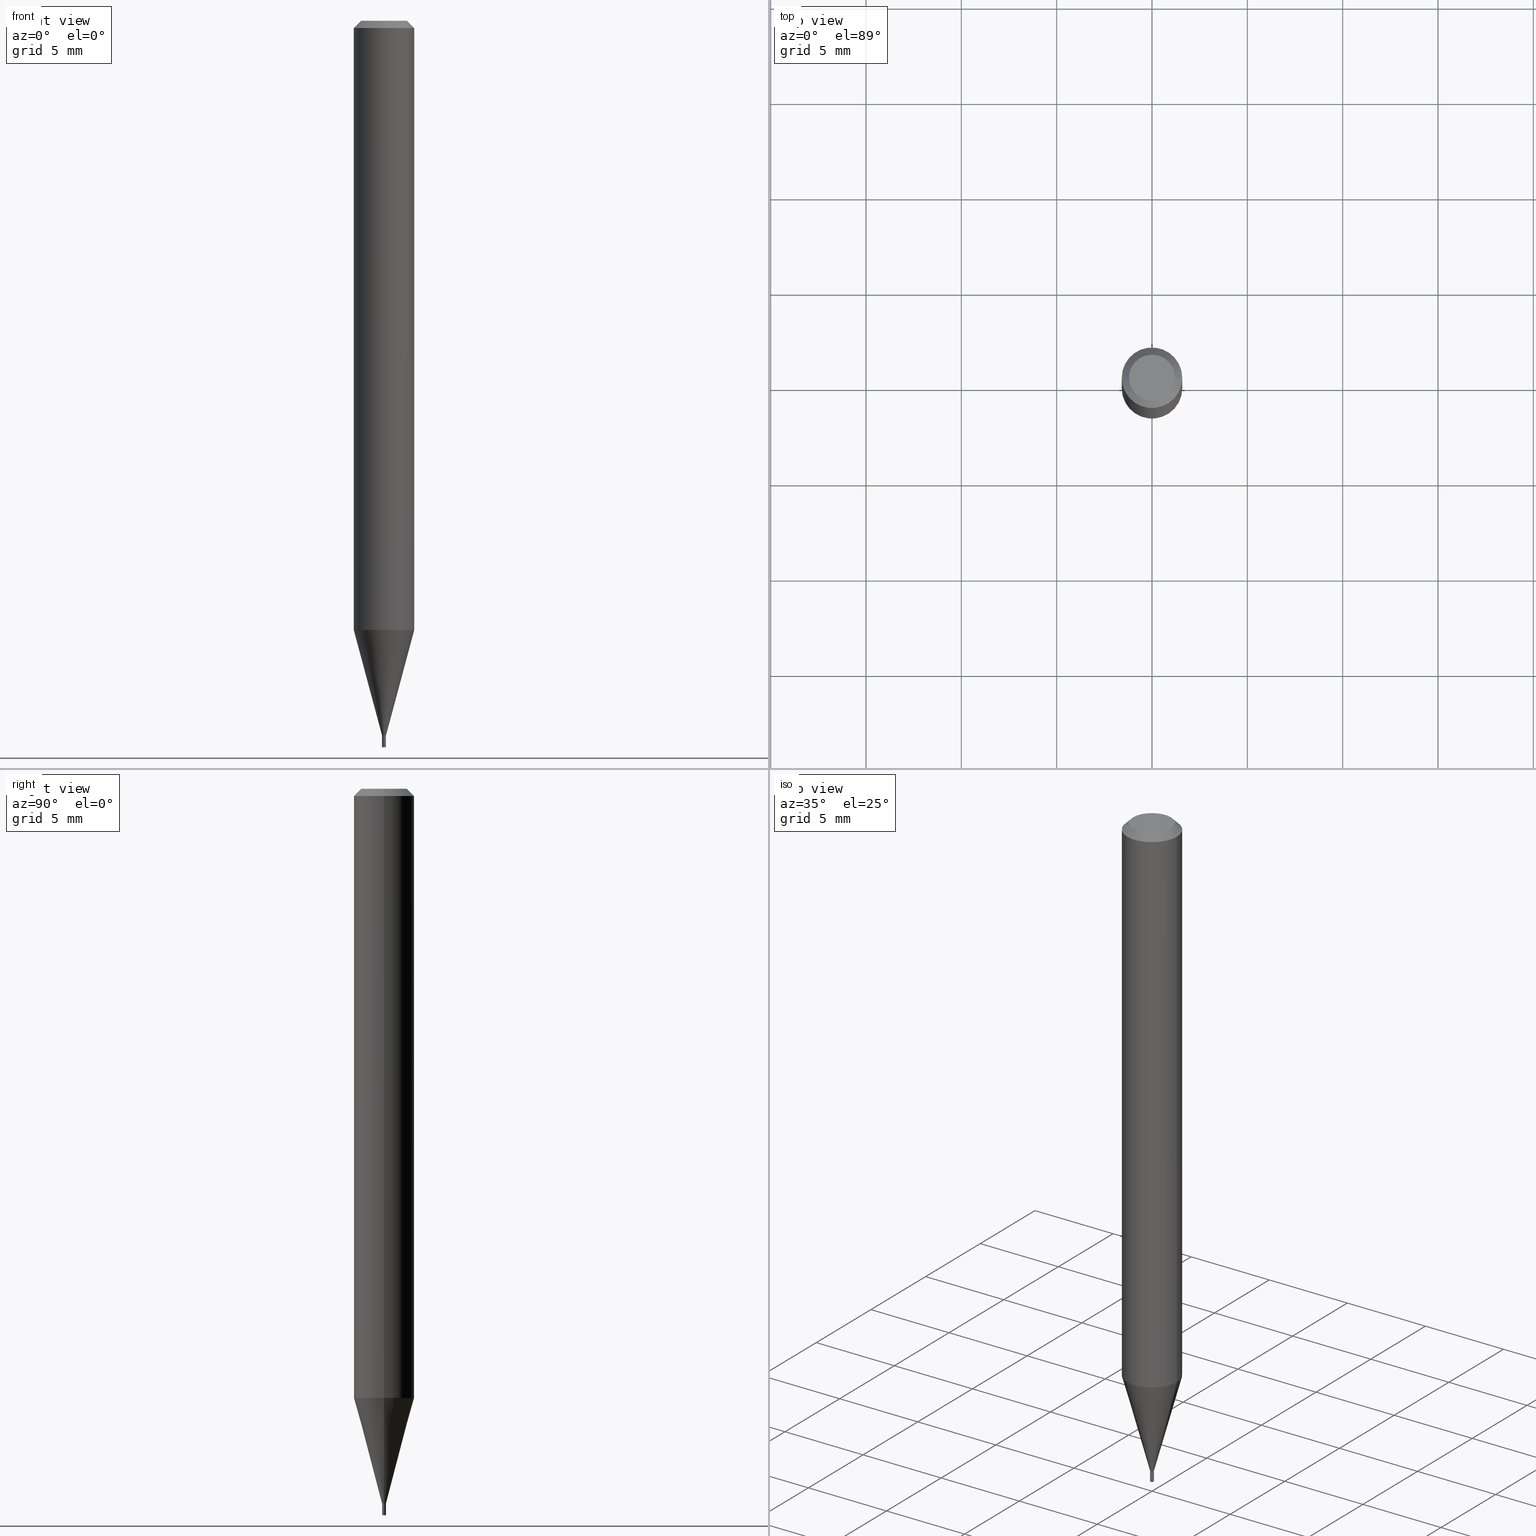
[diagram: canonical four-view strip — front | top / right | iso, engineering-drawing reading convention]
A machine part, canonical four-view strip (front | top / right | iso — engineering-drawing reading convention). The complete STEP part file that produces these views, byte-faithful:
ISO-10303-21;
HEADER;
FILE_DESCRIPTION (( 'STEP AP203' ),
    '1' );
FILE_NAME ('04114.STEP',
    '2024-03-14T17:01:27',
    ( '' ),
    ( '' ),
    'SwSTEP 2.0',
    'SolidWorks 2023',
    '' );
FILE_SCHEMA (( 'CONFIG_CONTROL_DESIGN' ));
ENDSEC;

DATA;
#1 = CARTESIAN_POINT ( 'NONE',  ( 3.609511957929261074E-29, -5.153426456132482850E-15, -1.475999999999999757 ) ) ;
#2 = VERTEX_POINT ( 'NONE', #280 ) ;
#3 = DIRECTION ( 'NONE',  ( 1.000000000000000000, -6.982962677686266711E-15, 4.876176775795935793E-29 ) ) ;
#4 = UNCERTAINTY_MEASURE_WITH_UNIT (LENGTH_MEASURE( 1.000000000000000082E-05 ), #153, 'distance_accuracy_value', 'NONE');
#5 = ORIENTED_EDGE ( 'NONE', *, *, #69, .T. ) ;
#6 = DIRECTION ( 'NONE',  ( 1.000000000000000000, -6.982962677686265922E-15, 4.876176775795935793E-29 ) ) ;
#7 = CIRCLE ( 'NONE', #248, 0.003999999999999650536 ) ;
#8 = DIRECTION ( 'NONE',  ( 1.000000000000000000, -6.982962677686266711E-15, 4.876176775795935793E-29 ) ) ;
#9 = DIRECTION ( 'NONE',  ( -2.445468806185136597E-29, 3.491481338843145583E-15, 1.000000000000000000 ) ) ;
#10 = CARTESIAN_POINT ( 'NONE',  ( 3.609511957929261635E-29, -5.153426456132482850E-15, -1.475999999999999979 ) ) ;
#11 = ADVANCED_FACE ( 'NONE', ( #114 ), #427, .F. ) ;
#12 = APPROVAL_DATE_TIME ( #58, #57 ) ;
#13 =( GEOMETRIC_REPRESENTATION_CONTEXT ( 3 ) GLOBAL_UNCERTAINTY_ASSIGNED_CONTEXT ( ( #4 ) ) GLOBAL_UNIT_ASSIGNED_CONTEXT ( ( #153, #15, #118 ) ) REPRESENTATION_CONTEXT ( 'NONE', 'WORKASPACE' ) );
#14 = CARTESIAN_POINT ( 'NONE',  ( 0.003999999999999650536, -5.179612566173804615E-15, -1.475500000000000256 ) ) ;
#15 =( NAMED_UNIT ( * ) PLANE_ANGLE_UNIT ( ) SI_UNIT ( $, .RADIAN. ) );
#16 = CARTESIAN_POINT ( 'NONE',  ( -0.003999999999999649669, 2.842170943040151818E-17, -1.967574036101790018E-31 ) ) ;
#17 = DIRECTION ( 'NONE',  ( 1.000000000000000000, 0.000000000000000000, 0.000000000000000000 ) ) ;
#18 = MANIFOLD_SOLID_BREP ( 'Body-Move/Copy2[2]', #444 ) ;
#19 = CARTESIAN_POINT ( 'NONE',  ( 0.000000000000000000, 0.000000000000000000, 0.000000000000000000 ) ) ;
#20 = VECTOR ( 'NONE', #394, 39.37007874015748143 ) ;
#21 = VECTOR ( 'NONE', #464, 39.37007874015748854 ) ;
#22 = EDGE_CURVE ( 'NONE', #26, #458, #452, .T. ) ;
#23 = EDGE_CURVE ( 'NONE', #251, #158, #70, .T. ) ;
#24 = SHAPE_DEFINITION_REPRESENTATION ( #329, #183 ) ;
#25 = APPROVAL_PERSON_ORGANIZATION ( #371, #65, #28 ) ;
#26 = VERTEX_POINT ( 'NONE', #209 ) ;
#27 = DIRECTION ( 'NONE',  ( 1.000000000000000000, -6.982962677686217801E-15, 0.000000000000000000 ) ) ;
#28 = APPROVAL_ROLE ( '' ) ;
#29 = ORIENTED_EDGE ( 'NONE', *, *, #218, .F. ) ;
#30 = PERSON_AND_ORGANIZATION_ROLE ( 'classification_officer' ) ;
#31 = DIRECTION ( 'NONE',  ( -2.445468806185136597E-29, 3.491481338843145583E-15, 1.000000000000000000 ) ) ;
#32 = CARTESIAN_POINT ( 'NONE',  ( 0.06250000000000000000, -4.811533449433679005E-16, -0.01499999999999999944 ) ) ;
#33 = DIRECTION ( 'NONE',  ( -2.445468806185136597E-29, 3.491481338843145583E-15, 1.000000000000000000 ) ) ;
#34 = SECURITY_CLASSIFICATION_LEVEL ( 'unclassified' ) ;
#35 = AXIS2_PLACEMENT_3D ( 'NONE', #385, #243, #257 ) ;
#36 = CARTESIAN_POINT ( 'NONE',  ( 0.003999999999999648802, -5.181358306843225329E-15, -1.475999999999999979 ) ) ;
#37 = AXIS2_PLACEMENT_3D ( 'NONE', #253, #391, #436 ) ;
#38 = DIRECTION ( 'NONE',  ( 1.000000000000000000, -6.982962677686267499E-15, 5.108144071313017768E-29 ) ) ;
#39 = DIRECTION ( 'NONE',  ( -1.000000000000000000, 6.982962677686266711E-15, 0.000000000000000000 ) ) ;
#40 = ORIENTED_EDGE ( 'NONE', *, *, #265, .F. ) ;
#41 = CARTESIAN_POINT ( 'NONE',  ( 0.003999999999999648802, -5.181358306843225329E-15, -1.475999999999999979 ) ) ;
#42 = ADVANCED_FACE ( 'NONE', ( #135 ), #357, .F. ) ;
#43 = DIRECTION ( 'NONE',  ( -2.445468806185136597E-29, 3.491481338843145583E-15, 1.000000000000000000 ) ) ;
#44 = DIRECTION ( 'NONE',  ( -2.445468806185136597E-29, 3.491481338843145583E-15, 1.000000000000000000 ) ) ;
#45 = APPROVAL ( #89, 'UNSPECIFIED' ) ;
#46 = CARTESIAN_POINT ( 'NONE',  ( 0.003500000000000000507, -5.177866825504383900E-15, -1.475999999999999757 ) ) ;
#47 = CARTESIAN_POINT ( 'NONE',  ( 2.793185071078116438E-17, 0.003999999999994847087, -1.475999999999999979 ) ) ;
#48 = DIRECTION ( 'NONE',  ( -2.445468806185136877E-29, 3.491481338843145188E-15, 1.000000000000000000 ) ) ;
#49 = CIRCLE ( 'NONE', #117, 0.004000000000000000083 ) ;
#50 = DIRECTION ( 'NONE',  ( 1.000000000000000000, -6.982962677686266711E-15, 4.876176775795935793E-29 ) ) ;
#51 = EDGE_CURVE ( 'NONE', #208, #78, #429, .T. ) ;
#52 = PERSON_AND_ORGANIZATION ( #416, #53 ) ;
#53 = ORGANIZATION ( 'UNSPECIFIED', 'UNSPECIFIED', '' ) ;
#54 = ORIENTED_EDGE ( 'NONE', *, *, #448, .F. ) ;
#55 = CIRCLE ( 'NONE', #419, 0.003999999999999650536 ) ;
#56 = EDGE_CURVE ( 'NONE', #208, #2, #68, .T. ) ;
#57 = APPROVAL ( #407, 'UNSPECIFIED' ) ;
#58 = DATE_AND_TIME ( #217, #107 ) ;
#59 = PERSON_AND_ORGANIZATION ( #416, #53 ) ;
#60 = CONICAL_SURFACE ( 'NONE', #121, 0.003999999999999648802, 0.2617993877991504625 ) ;
#61 = AXIS2_PLACEMENT_3D ( 'NONE', #308, #129, #424 ) ;
#62 = ORIENTED_EDGE ( 'NONE', *, *, #433, .T. ) ;
#63 = CARTESIAN_POINT ( 'NONE',  ( -0.004000000000000000083, 2.842170943040400803E-17, -1.967574036101962334E-31 ) ) ;
#64 = ORIENTED_EDGE ( 'NONE', *, *, #367, .T. ) ;
#65 = APPROVAL ( #342, 'UNSPECIFIED' ) ;
#66 = CYLINDRICAL_SURFACE ( 'NONE', #187, 0.003999999999999649669 ) ;
#67 = ORIENTED_EDGE ( 'NONE', *, *, #265, .T. ) ;
#68 = LINE ( 'NONE', #167, #179 ) ;
#69 = EDGE_CURVE ( 'NONE', #158, #251, #223, .T. ) ;
#70 = CIRCLE ( 'NONE', #160, 0.04749999999999999362 ) ;
#71 = DIRECTION ( 'NONE',  ( 1.000000000000000000, -6.982962677686262766E-15, 0.000000000000000000 ) ) ;
#72 = AXIS2_PLACEMENT_3D ( 'NONE', #19, #155, #17 ) ;
#73 = ORIENTED_EDGE ( 'NONE', *, *, #373, .F. ) ;
#74 = DIRECTION ( 'NONE',  ( -0.2588190451025217387, 5.211531920934551042E-15, 0.9659258262890679791 ) ) ;
#75 = VERTEX_POINT ( 'NONE', #212 ) ;
#76 = FACE_OUTER_BOUND ( 'NONE', #430, .T. ) ;
#77 = CC_DESIGN_DATE_AND_TIME_ASSIGNMENT ( #222, #403, ( #219 ) ) ;
#78 = VERTEX_POINT ( 'NONE', #41 ) ;
#79 = FACE_OUTER_BOUND ( 'NONE', #449, .T. ) ;
#80 = CARTESIAN_POINT ( 'NONE',  ( -0.06250000000000000000, 4.440892098500626162E-16, -3.074334431409316114E-30 ) ) ;
#81 = DIRECTION ( 'NONE',  ( -2.445468806185136597E-29, 3.491481338843145583E-15, 1.000000000000000000 ) ) ;
#82 = PLANE ( 'NONE',  #289 ) ;
#83 = CARTESIAN_POINT ( 'NONE',  ( -0.003500000000000000507, -5.128557460380878927E-15, -1.475999999999999757 ) ) ;
#84 = EDGE_CURVE ( 'NONE', #158, #26, #325, .T. ) ;
#85 = ADVANCED_FACE ( 'NONE', ( #182 ), #360, .T. ) ;
#86 = SECURITY_CLASSIFICATION ( '', '', #34 ) ;
#87 = COORDINATED_UNIVERSAL_TIME_OFFSET ( 5, 0, .BEHIND. ) ;
#88 = EDGE_LOOP ( 'NONE', ( #356, #29 ) ) ;
#89 = APPROVAL_STATUS ( 'not_yet_approved' ) ;
#90 = ORIENTED_EDGE ( 'NONE', *, *, #373, .T. ) ;
#91 = VECTOR ( 'NONE', #48, 39.37007874015748143 ) ;
#92 = ORIENTED_EDGE ( 'NONE', *, *, #51, .T. ) ;
#93 = ADVANCED_FACE ( 'NONE', ( #316 ), #256, .T. ) ;
#94 = EDGE_LOOP ( 'NONE', ( #200, #92, #124, #304 ) ) ;
#95 = EDGE_LOOP ( 'NONE', ( #264, #422, #198, #237 ) ) ;
#96 = LOCAL_TIME ( 13, 1, 27.00000000000000000, #442 ) ;
#97 = LINE ( 'NONE', #36, #21 ) ;
#98 = VERTEX_POINT ( 'NONE', #321 ) ;
#99 = CARTESIAN_POINT ( 'NONE',  ( 0.04749999999999999362, -4.035134999187603275E-16, -1.404502872476248897E-15 ) ) ;
#100 = ORIENTED_EDGE ( 'NONE', *, *, #162, .F. ) ;
#101 = CARTESIAN_POINT ( 'NONE',  ( 0.000000000000000000, 0.000000000000000000, 0.000000000000000000 ) ) ;
#102 = DIRECTION ( 'NONE',  ( -2.445468806185136877E-29, 3.491481338843145188E-15, 1.000000000000000000 ) ) ;
#103 = EDGE_CURVE ( 'NONE', #267, #104, #331, .T. ) ;
#104 = VERTEX_POINT ( 'NONE', #146 ) ;
#105 = DIRECTION ( 'NONE',  ( 2.438088387897960049E-29, -3.491481338843145188E-15, -1.000000000000000000 ) ) ;
#106 = ADVANCED_FACE ( 'NONE', ( #284 ), #288, .T. ) ;
#107 = LOCAL_TIME ( 13, 1, 27.00000000000000000, #87 ) ;
#108 = DIRECTION ( 'NONE',  ( 1.000000000000000000, -6.982962677686266711E-15, 4.876176775795935793E-29 ) ) ;
#109 = CARTESIAN_POINT ( 'NONE',  ( 3.434667962838094334E-44, -4.903795569602426839E-30, -1.404502872476251461E-15 ) ) ;
#110 = CYLINDRICAL_SURFACE ( 'NONE', #230, 0.004000000000000000083 ) ;
#111 = DIRECTION ( 'NONE',  ( 1.000000000000000000, -6.982962677686192558E-15, 0.000000000000000000 ) ) ;
#112 = EDGE_LOOP ( 'NONE', ( #457, #165, #447, #245 ) ) ;
#113 = EDGE_CURVE ( 'NONE', #78, #208, #125, .T. ) ;
#114 = FACE_OUTER_BOUND ( 'NONE', #88, .T. ) ;
#115 = FACE_OUTER_BOUND ( 'NONE', #358, .T. ) ;
#116 = DIRECTION ( 'NONE',  ( -2.445468806185136877E-29, 3.491481338843145188E-15, 1.000000000000000000 ) ) ;
#117 = AXIS2_PLACEMENT_3D ( 'NONE', #275, #314, #434 ) ;
#118 =( NAMED_UNIT ( * ) SI_UNIT ( $, .STERADIAN. ) SOLID_ANGLE_UNIT ( ) );
#119 = EDGE_CURVE ( 'NONE', #2, #26, #143, .T. ) ;
#120 = EDGE_CURVE ( 'NONE', #323, #387, #7, .T. ) ;
#121 = AXIS2_PLACEMENT_3D ( 'NONE', #412, #344, #27 ) ;
#122 = AXIS2_PLACEMENT_3D ( 'NONE', #328, #145, #39 ) ;
#123 = PERSON_AND_ORGANIZATION ( #416, #53 ) ;
#124 = ORIENTED_EDGE ( 'NONE', *, *, #335, .T. ) ;
#125 = CIRCLE ( 'NONE', #35, 0.003999999999999648802 ) ;
#126 = AXIS2_PLACEMENT_3D ( 'NONE', #309, #43, #238 ) ;
#127 = EDGE_LOOP ( 'NONE', ( #451, #322, #461, #100 ) ) ;
#128 = EDGE_LOOP ( 'NONE', ( #64, #131 ) ) ;
#129 = DIRECTION ( 'NONE',  ( -2.445468806185136597E-29, 3.491481338843145583E-15, 1.000000000000000000 ) ) ;
#130 = CALENDAR_DATE ( 2024, 14, 3 ) ;
#131 = ORIENTED_EDGE ( 'NONE', *, *, #103, .T. ) ;
#132 = CONICAL_SURFACE ( 'NONE', #190, 0.06250000000000000000, 0.7853981633974952414 ) ;
#133 = DIRECTION ( 'NONE',  ( -2.445468806185136597E-29, 3.491481338843145583E-15, 1.000000000000000000 ) ) ;
#134 = ORIENTED_EDGE ( 'NONE', *, *, #401, .T. ) ;
#135 = FACE_OUTER_BOUND ( 'NONE', #128, .T. ) ;
#136 = ADVANCED_FACE ( 'NONE', ( #115 ), #82, .F. ) ;
#137 = PLANE ( 'NONE',  #203 ) ;
#138 = ORIENTED_EDGE ( 'NONE', *, *, #22, .F. ) ;
#139 = CARTESIAN_POINT ( 'NONE',  ( 3.609511957929261635E-29, -5.153426456132482850E-15, -1.475999999999999979 ) ) ;
#140 = CC_DESIGN_PERSON_AND_ORGANIZATION_ASSIGNMENT ( #311, #240, ( #157 ) ) ;
#141 = CARTESIAN_POINT ( 'NONE',  ( -0.003500000000000000507, -5.125908233206770092E-15, -1.475999999999999757 ) ) ;
#142 = ORIENTED_EDGE ( 'NONE', *, *, #185, .T. ) ;
#143 = LINE ( 'NONE', #80, #20 ) ;
#144 = LOCAL_TIME ( 13, 1, 27.00000000000000000, #194 ) ;
#145 = DIRECTION ( 'NONE',  ( 2.445468806185136597E-29, -3.491481338843145583E-15, -1.000000000000000000 ) ) ;
#146 = CARTESIAN_POINT ( 'NONE',  ( 0.004000000000000000083, -5.181358306843227696E-15, -1.475999999999999979 ) ) ;
#147 = CARTESIAN_POINT ( 'NONE',  ( 3.609511957929261635E-29, -5.153426456132482850E-15, -1.475999999999999979 ) ) ;
#148 = DIRECTION ( 'NONE',  ( 1.000000000000000000, -6.982962677686332975E-15, 0.000000000000000000 ) ) ;
#149 = VECTOR ( 'NONE', #269, 39.37007874015748143 ) ;
#150 = LENGTH_MEASURE_WITH_UNIT ( LENGTH_MEASURE( 0.02539999999999999897 ), #286 );
#151 = VECTOR ( 'NONE', #102, 39.37007874015748143 ) ;
#152 = EDGE_CURVE ( 'NONE', #208, #323, #366, .T. ) ;
#153 =( CONVERSION_BASED_UNIT ( 'INCH', #150 ) LENGTH_UNIT ( ) NAMED_UNIT ( #241 ) );
#154 = LINE ( 'NONE', #191, #149 ) ;
#155 = DIRECTION ( 'NONE',  ( 0.000000000000000000, 0.000000000000000000, 1.000000000000000000 ) ) ;
#156 = AXIS2_PLACEMENT_3D ( 'NONE', #362, #177, #252 ) ;
#157 = PRODUCT_DEFINITION_FORMATION_WITH_SPECIFIED_SOURCE ( 'ANY', '', #220, .NOT_KNOWN. ) ;
#158 = VERTEX_POINT ( 'NONE', #228 ) ;
#159 = CALENDAR_DATE ( 2024, 14, 3 ) ;
#160 = AXIS2_PLACEMENT_3D ( 'NONE', #109, #431, #38 ) ;
#161 = APPROVAL_PERSON_ORGANIZATION ( #123, #57, #260 ) ;
#162 = EDGE_CURVE ( 'NONE', #410, #458, #154, .T. ) ;
#163 = ORIENTED_EDGE ( 'NONE', *, *, #218, .T. ) ;
#164 = APPROVAL_DATE_TIME ( #414, #65 ) ;
#165 = ORIENTED_EDGE ( 'NONE', *, *, #56, .T. ) ;
#166 = DIRECTION ( 'NONE',  ( 0.7071067811865806574, -7.319954787623366486E-15, -0.7071067811865142660 ) ) ;
#167 = CARTESIAN_POINT ( 'NONE',  ( -0.003999999999999648802, -5.125004746702081184E-15, -1.475999999999999979 ) ) ;
#168 = PERSON_AND_ORGANIZATION ( #416, #53 ) ;
#169 = DIRECTION ( 'NONE',  ( 1.000000000000000000, -6.982962677686214646E-15, 0.000000000000000000 ) ) ;
#170 = CONICAL_SURFACE ( 'NONE', #204, 0.003500000000000000507, 0.7853981633974723708 ) ;
#171 = CARTESIAN_POINT ( 'NONE',  ( -0.003999999999999650536, -5.123259006032661258E-15, -1.475500000000000256 ) ) ;
#172 = CARTESIAN_POINT ( 'NONE',  ( -0.06250000000000000000, 3.840629472727444916E-16, -0.01499999999999999944 ) ) ;
#173 = CARTESIAN_POINT ( 'NONE',  ( 0.003999999999999649669, -2.793185071074262113E-17, 1.950470710318203516E-31 ) ) ;
#174 = DIRECTION ( 'NONE',  ( -2.445468806185136597E-29, 3.491481338843145583E-15, 1.000000000000000000 ) ) ;
#175 = DIRECTION ( 'NONE',  ( 1.000000000000000000, -6.982962677686266711E-15, 4.876176775795935793E-29 ) ) ;
#176 = CARTESIAN_POINT ( 'NONE',  ( -0.003999999999999648802, -4.536032213297693452E-15, -1.475999999999999979 ) ) ;
#177 = DIRECTION ( 'NONE',  ( -2.438088387897960049E-29, 3.491481338843145188E-15, 1.000000000000000000 ) ) ;
#178 = CARTESIAN_POINT ( 'NONE',  ( 0.06250000000000000000, -4.827584057098760794E-15, -1.257675027757220398 ) ) ;
#179 = VECTOR ( 'NONE', #74, 39.37007874015748854 ) ;
#180 = LOCAL_TIME ( 13, 1, 27.00000000000000000, #413 ) ;
#181 = FACE_OUTER_BOUND ( 'NONE', #381, .T. ) ;
#182 = FACE_OUTER_BOUND ( 'NONE', #426, .T. ) ;
#183 = ADVANCED_BREP_SHAPE_REPRESENTATION ( '04114', ( #315, #18, #72 ), #13 ) ;
#184 = ADVANCED_FACE ( 'NONE', ( #307 ), #60, .T. ) ;
#185 = EDGE_CURVE ( 'NONE', #458, #26, #270, .T. ) ;
#186 = DIRECTION ( 'NONE',  ( 1.000000000000000000, -6.982962677686192558E-15, 0.000000000000000000 ) ) ;
#187 = AXIS2_PLACEMENT_3D ( 'NONE', #425, #174, #319 ) ;
#188 = EDGE_CURVE ( 'NONE', #410, #2, #189, .T. ) ;
#189 = CIRCLE ( 'NONE', #411, 0.06250000000000000000 ) ;
#190 = AXIS2_PLACEMENT_3D ( 'NONE', #392, #199, #324 ) ;
#191 = CARTESIAN_POINT ( 'NONE',  ( 0.06250000000000000000, -4.364351673553916694E-16, 3.047610484872459871E-30 ) ) ;
#192 = ORIENTED_EDGE ( 'NONE', *, *, #369, .T. ) ;
#193 = EDGE_LOOP ( 'NONE', ( #343, #305, #379, #273 ) ) ;
#194 = COORDINATED_UNIVERSAL_TIME_OFFSET ( 5, 0, .BEHIND. ) ;
#195 = ADVANCED_FACE ( 'NONE', ( #79 ), #263, .T. ) ;
#196 = VECTOR ( 'NONE', #359, 39.37007874015748143 ) ;
#197 = VERTEX_POINT ( 'NONE', #141 ) ;
#198 = ORIENTED_EDGE ( 'NONE', *, *, #120, .T. ) ;
#199 = DIRECTION ( 'NONE',  ( 2.445468806185136597E-29, -3.491481338843145583E-15, -1.000000000000000000 ) ) ;
#200 = ORIENTED_EDGE ( 'NONE', *, *, #56, .F. ) ;
#201 = FACE_OUTER_BOUND ( 'NONE', #94, .T. ) ;
#202 = DIRECTION ( 'NONE',  ( 1.000000000000000000, -6.982962677686217801E-15, 0.000000000000000000 ) ) ;
#203 = AXIS2_PLACEMENT_3D ( 'NONE', #421, #278, #6 ) ;
#204 = AXIS2_PLACEMENT_3D ( 'NONE', #225, #395, #297 ) ;
#205 = DIRECTION ( 'NONE',  ( -2.445468806185136597E-29, 3.491481338843145583E-15, 1.000000000000000000 ) ) ;
#206 = DIRECTION ( 'NONE',  ( 1.000000000000000000, -6.982962677686266711E-15, 0.000000000000000000 ) ) ;
#207 = DIRECTION ( 'NONE',  ( -2.445468806185136597E-29, 3.491481338843145583E-15, 1.000000000000000000 ) ) ;
#208 = VERTEX_POINT ( 'NONE', #176 ) ;
#209 = CARTESIAN_POINT ( 'NONE',  ( -0.06250000000000000000, -1.777671345062946077E-15, -0.01499999999999999944 ) ) ;
#210 = ORIENTED_EDGE ( 'NONE', *, *, #162, .T. ) ;
#211 = LINE ( 'NONE', #46, #196 ) ;
#212 = CARTESIAN_POINT ( 'NONE',  ( -0.004000000000000000083, -5.166902522768196481E-15, -1.500000000000000222 ) ) ;
#213 = AXIS2_PLACEMENT_3D ( 'NONE', #250, #361, #348 ) ;
#214 = DIRECTION ( 'NONE',  ( 1.000000000000000000, -6.982962677686214646E-15, 0.000000000000000000 ) ) ;
#215 = ADVANCED_FACE ( 'NONE', ( #388 ), #137, .F. ) ;
#216 = CARTESIAN_POINT ( 'NONE',  ( 0.004000000000000000083, -2.793185071074506783E-17, 1.950470710318374300E-31 ) ) ;
#217 = CALENDAR_DATE ( 2024, 14, 3 ) ;
#218 = EDGE_CURVE ( 'NONE', #75, #98, #49, .T. ) ;
#219 = PRODUCT_DEFINITION ( 'UNKNOWN', '', #157, #293 ) ;
#220 = PRODUCT ( '04114', '04114', '', ( #227 ) ) ;
#221 = DIRECTION ( 'NONE',  ( -1.000000000000000000, 6.982962677686265922E-15, -4.876176775795935793E-29 ) ) ;
#222 = DATE_AND_TIME ( #261, #96 ) ;
#223 = CIRCLE ( 'NONE', #294, 0.04749999999999999362 ) ;
#224 = CC_DESIGN_APPROVAL ( #57, ( #219 ) ) ;
#225 = CARTESIAN_POINT ( 'NONE',  ( 3.609511957929261074E-29, -5.153426456132482850E-15, -1.475999999999999757 ) ) ;
#226 = EDGE_CURVE ( 'NONE', #374, #197, #368, .T. ) ;
#227 = MECHANICAL_CONTEXT ( 'NONE', #409, 'mechanical' ) ;
#228 = CARTESIAN_POINT ( 'NONE',  ( -0.04749999999999999362, 3.578768372314186347E-16, -1.404502872476254025E-15 ) ) ;
#229 = AXIS2_PLACEMENT_3D ( 'NONE', #382, #390, #206 ) ;
#230 = AXIS2_PLACEMENT_3D ( 'NONE', #397, #351, #50 ) ;
#231 = DATE_AND_TIME ( #462, #144 ) ;
#232 = ORIENTED_EDGE ( 'NONE', *, *, #22, .T. ) ;
#233 = ORIENTED_EDGE ( 'NONE', *, *, #226, .F. ) ;
#234 = EDGE_LOOP ( 'NONE', ( #456, #67, #327, #349 ) ) ;
#235 = DATE_AND_TIME ( #159, #180 ) ;
#236 = CC_DESIGN_SECURITY_CLASSIFICATION ( #86, ( #157 ) ) ;
#237 = ORIENTED_EDGE ( 'NONE', *, *, #437, .F. ) ;
#238 = DIRECTION ( 'NONE',  ( 1.000000000000000000, -6.982962677686332975E-15, 0.000000000000000000 ) ) ;
#239 = ORIENTED_EDGE ( 'NONE', *, *, #152, .F. ) ;
#240 = PERSON_AND_ORGANIZATION_ROLE ( 'creator' ) ;
#241 = DIMENSIONAL_EXPONENTS ( 1.000000000000000000, 0.000000000000000000, 0.000000000000000000, 0.000000000000000000, 0.000000000000000000, 0.000000000000000000, 0.000000000000000000 ) ;
#242 = DIRECTION ( 'NONE',  ( -2.445468806185136597E-29, 3.491481338843145583E-15, 1.000000000000000000 ) ) ;
#243 = DIRECTION ( 'NONE',  ( -2.445468806185136597E-29, 3.491481338843145583E-15, 1.000000000000000000 ) ) ;
#244 = CYLINDRICAL_SURFACE ( 'NONE', #454, 0.003999999999999649669 ) ;
#245 = ORIENTED_EDGE ( 'NONE', *, *, #335, .F. ) ;
#246 = CARTESIAN_POINT ( 'NONE',  ( 0.000000000000000000, 0.000000000000000000, 0.000000000000000000 ) ) ;
#247 = VECTOR ( 'NONE', #408, 39.37007874015748143 ) ;
#248 = AXIS2_PLACEMENT_3D ( 'NONE', #396, #81, #214 ) ;
#249 = AXIS2_PLACEMENT_3D ( 'NONE', #147, #205, #378 ) ;
#250 = CARTESIAN_POINT ( 'NONE',  ( 3.609511957929261635E-29, -5.153426456132482850E-15, -1.475999999999999979 ) ) ;
#251 = VERTEX_POINT ( 'NONE', #99 ) ;
#252 = DIRECTION ( 'NONE',  ( 1.000000000000000000, -6.982962677686265922E-15, 4.876176775795935793E-29 ) ) ;
#253 = CARTESIAN_POINT ( 'NONE',  ( 3.075605048698308090E-29, -4.391148889743369914E-15, -1.257675027757220398 ) ) ;
#254 = CARTESIAN_POINT ( 'NONE',  ( -0.004000000000000000083, -5.166902522768196481E-15, -1.475999999999999979 ) ) ;
#255 = CC_DESIGN_DATE_AND_TIME_ASSIGNMENT ( #235, #303, ( #86 ) ) ;
#256 = CYLINDRICAL_SURFACE ( 'NONE', #404, 0.06250000000000000000 ) ;
#257 = DIRECTION ( 'NONE',  ( 1.000000000000000000, -6.982962677686217801E-15, 0.000000000000000000 ) ) ;
#258 = ADVANCED_FACE ( 'NONE', ( #355 ), #66, .F. ) ;
#259 = CARTESIAN_POINT ( 'NONE',  ( 0.06250000000000000000, -4.888073874380388472E-16, -0.01499999999999999944 ) ) ;
#260 = APPROVAL_ROLE ( '' ) ;
#261 = CALENDAR_DATE ( 2024, 14, 3 ) ;
#262 = ADVANCED_FACE ( 'NONE', ( #201 ), #370, .T. ) ;
#263 = CONICAL_SURFACE ( 'NONE', #122, 0.06250000000000000000, 0.7853981633974952414 ) ;
#264 = ORIENTED_EDGE ( 'NONE', *, *, #51, .F. ) ;
#265 = EDGE_CURVE ( 'NONE', #75, #267, #287, .T. ) ;
#266 = AXIS2_PLACEMENT_3D ( 'NONE', #1, #9, #111 ) ;
#267 = VERTEX_POINT ( 'NONE', #254 ) ;
#268 = ORIENTED_EDGE ( 'NONE', *, *, #103, .F. ) ;
#269 = DIRECTION ( 'NONE',  ( -2.445468806185136877E-29, 3.491481338843145188E-15, 1.000000000000000000 ) ) ;
#270 = CIRCLE ( 'NONE', #352, 0.06250000000000000000 ) ;
#271 = VECTOR ( 'NONE', #116, 39.37007874015748143 ) ;
#272 = DIRECTION ( 'NONE',  ( 1.000000000000000000, -6.982962677686266711E-15, 0.000000000000000000 ) ) ;
#273 = ORIENTED_EDGE ( 'NONE', *, *, #333, .F. ) ;
#274 = CARTESIAN_POINT ( 'NONE',  ( 3.434667962838094334E-44, -4.903795569602426839E-30, -1.404502872476251461E-15 ) ) ;
#275 = CARTESIAN_POINT ( 'NONE',  ( 3.668203209277704895E-29, -5.237222008264718177E-15, -1.500000000000000222 ) ) ;
#276 = ORIENTED_EDGE ( 'NONE', *, *, #119, .F. ) ;
#277 = DIRECTION ( 'NONE',  ( -0.7071067811865806574, 2.468850131082604554E-15, -0.7071067811865142660 ) ) ;
#278 = DIRECTION ( 'NONE',  ( -2.438088387897960049E-29, 3.491481338843145188E-15, 1.000000000000000000 ) ) ;
#279 = EDGE_LOOP ( 'NONE', ( #233, #73 ) ) ;
#280 = CARTESIAN_POINT ( 'NONE',  ( -0.06250000000000000000, -3.947059679893307297E-15, -1.257675027757220398 ) ) ;
#281 = CLOSED_SHELL ( 'NONE', ( #106, #11, #420, #42 ) ) ;
#282 = CC_DESIGN_APPROVAL ( #65, ( #157 ) ) ;
#283 = CARTESIAN_POINT ( 'NONE',  ( 3.075605048698308090E-29, -4.391148889743369914E-15, -1.257675027757220398 ) ) ;
#284 = FACE_OUTER_BOUND ( 'NONE', #234, .T. ) ;
#285 = FACE_OUTER_BOUND ( 'NONE', #389, .T. ) ;
#286 =( LENGTH_UNIT ( ) NAMED_UNIT ( * ) SI_UNIT ( $, .METRE. ) );
#287 = LINE ( 'NONE', #63, #151 ) ;
#288 = CYLINDRICAL_SURFACE ( 'NONE', #418, 0.004000000000000000083 ) ;
#289 = AXIS2_PLACEMENT_3D ( 'NONE', #291, #402, #221 ) ;
#290 = CIRCLE ( 'NONE', #126, 0.004000000000000000083 ) ;
#291 = CARTESIAN_POINT ( 'NONE',  ( 3.316907271900976096E-16, 0.04749999999999999362, -8.680967998331751761E-16 ) ) ;
#292 = PERSON_AND_ORGANIZATION_ROLE ( 'creator' ) ;
#293 = DESIGN_CONTEXT ( 'detailed design', #440, 'design' ) ;
#294 = AXIS2_PLACEMENT_3D ( 'NONE', #274, #350, #423 ) ;
#295 = CC_DESIGN_PERSON_AND_ORGANIZATION_ASSIGNMENT ( #52, #292, ( #219 ) ) ;
#296 = PERSON_AND_ORGANIZATION_ROLE ( 'design_owner' ) ;
#297 = DIRECTION ( 'NONE',  ( 1.000000000000000000, -6.982962677686192558E-15, 0.000000000000000000 ) ) ;
#298 = APPROVAL_ROLE ( '' ) ;
#299 = CC_DESIGN_PERSON_AND_ORGANIZATION_ASSIGNMENT ( #168, #30, ( #86 ) ) ;
#300 = AXIS2_PLACEMENT_3D ( 'NONE', #10, #33, #202 ) ;
#301 = VECTOR ( 'NONE', #399, 39.37007874015748143 ) ;
#302 = CIRCLE ( 'NONE', #37, 0.06250000000000000000 ) ;
#303 = DATE_TIME_ROLE ( 'classification_date' ) ;
#304 = ORIENTED_EDGE ( 'NONE', *, *, #433, .F. ) ;
#305 = ORIENTED_EDGE ( 'NONE', *, *, #448, .T. ) ;
#306 = ORIENTED_EDGE ( 'NONE', *, *, #120, .F. ) ;
#307 = FACE_OUTER_BOUND ( 'NONE', #112, .T. ) ;
#308 = CARTESIAN_POINT ( 'NONE',  ( 3.609511957929261074E-29, -5.153426456132482850E-15, -1.475999999999999757 ) ) ;
#309 = CARTESIAN_POINT ( 'NONE',  ( 3.668203209277704895E-29, -5.237222008264718177E-15, -1.500000000000000222 ) ) ;
#310 = DIRECTION ( 'NONE',  ( -1.000000000000000000, 6.982962677686265922E-15, -4.876176775795935793E-29 ) ) ;
#311 = PERSON_AND_ORGANIZATION ( #416, #53 ) ;
#312 = AXIS2_PLACEMENT_3D ( 'NONE', #139, #44, #148 ) ;
#313 = AXIS2_PLACEMENT_3D ( 'NONE', #459, #133, #186 ) ;
#314 = DIRECTION ( 'NONE',  ( -2.445468806185136597E-29, 3.491481338843145583E-15, 1.000000000000000000 ) ) ;
#315 = MANIFOLD_SOLID_BREP ( 'Body-Move/Copy2[1]', #281 ) ;
#316 = FACE_OUTER_BOUND ( 'NONE', #127, .T. ) ;
#317 = LINE ( 'NONE', #83, #301 ) ;
#318 = ADVANCED_FACE ( 'NONE', ( #76 ), #132, .T. ) ;
#319 = DIRECTION ( 'NONE',  ( 1.000000000000000000, -6.982962677686266711E-15, 4.876176775795935793E-29 ) ) ;
#320 = ORIENTED_EDGE ( 'NONE', *, *, #23, .F. ) ;
#321 = CARTESIAN_POINT ( 'NONE',  ( 0.004000000000000000083, -5.265153858975463812E-15, -1.500000000000000222 ) ) ;
#322 = ORIENTED_EDGE ( 'NONE', *, *, #119, .T. ) ;
#323 = VERTEX_POINT ( 'NONE', #171 ) ;
#324 = DIRECTION ( 'NONE',  ( -1.000000000000000000, 6.982962677686266711E-15, 0.000000000000000000 ) ) ;
#325 = LINE ( 'NONE', #172, #398 ) ;
#326 = CC_DESIGN_APPROVAL ( #45, ( #86 ) ) ;
#327 = ORIENTED_EDGE ( 'NONE', *, *, #367, .F. ) ;
#328 = CARTESIAN_POINT ( 'NONE',  ( 3.668203209277705088E-31, -5.237222008264718399E-17, -0.01499999999999999944 ) ) ;
#329 = PRODUCT_DEFINITION_SHAPE ( 'NONE', 'NONE',  #219 ) ;
#330 = DIRECTION ( 'NONE',  ( -2.445468806185136597E-29, 3.491481338843145583E-15, 1.000000000000000000 ) ) ;
#331 = CIRCLE ( 'NONE', #312, 0.004000000000000000083 ) ;
#332 = CARTESIAN_POINT ( 'NONE',  ( 0.003500000000000000507, -5.177866825504383900E-15, -1.475999999999999757 ) ) ;
#333 = EDGE_CURVE ( 'NONE', #374, #387, #211, .T. ) ;
#334 = FACE_OUTER_BOUND ( 'NONE', #193, .T. ) ;
#335 = EDGE_CURVE ( 'NONE', #78, #410, #97, .T. ) ;
#336 = PERSON_AND_ORGANIZATION ( #416, #53 ) ;
#337 = AXIS2_PLACEMENT_3D ( 'NONE', #246, #330, #8 ) ;
#338 = EDGE_LOOP ( 'NONE', ( #54, #90, #384, #306 ) ) ;
#339 = APPROVAL_DATE_TIME ( #231, #45 ) ;
#340 = AXIS2_PLACEMENT_3D ( 'NONE', #47, #105, #310 ) ;
#341 = APPROVAL_PERSON_ORGANIZATION ( #450, #45, #298 ) ;
#342 = APPROVAL_STATUS ( 'not_yet_approved' ) ;
#343 = ORIENTED_EDGE ( 'NONE', *, *, #226, .T. ) ;
#344 = DIRECTION ( 'NONE',  ( -2.445468806185136597E-29, 3.491481338843145583E-15, 1.000000000000000000 ) ) ;
#345 = PERSON_AND_ORGANIZATION_ROLE ( 'design_supplier' ) ;
#346 = ORIENTED_EDGE ( 'NONE', *, *, #69, .F. ) ;
#347 = LINE ( 'NONE', #32, #432 ) ;
#348 = DIRECTION ( 'NONE',  ( 1.000000000000000000, -6.982962677686217801E-15, 0.000000000000000000 ) ) ;
#349 = ORIENTED_EDGE ( 'NONE', *, *, #453, .F. ) ;
#350 = DIRECTION ( 'NONE',  ( -2.445468806185136597E-29, 3.491481338843145583E-15, 1.000000000000000000 ) ) ;
#351 = DIRECTION ( 'NONE',  ( -2.445468806185136597E-29, 3.491481338843145583E-15, 1.000000000000000000 ) ) ;
#352 = AXIS2_PLACEMENT_3D ( 'NONE', #380, #207, #272 ) ;
#353 = ADVANCED_FACE ( 'NONE', ( #181 ), #244, .F. ) ;
#354 = EDGE_CURVE ( 'NONE', #98, #75, #290, .T. ) ;
#355 = FACE_OUTER_BOUND ( 'NONE', #95, .T. ) ;
#356 = ORIENTED_EDGE ( 'NONE', *, *, #354, .F. ) ;
#357 = PLANE ( 'NONE',  #340 ) ;
#358 = EDGE_LOOP ( 'NONE', ( #5, #372 ) ) ;
#359 = DIRECTION ( 'NONE',  ( 0.7071067811865645591, -2.468850131082435343E-15, 0.7071067811865304753 ) ) ;
#360 = CYLINDRICAL_SURFACE ( 'NONE', #337, 0.06250000000000000000 ) ;
#361 = DIRECTION ( 'NONE',  ( -2.445468806185136597E-29, 3.491481338843145583E-15, 1.000000000000000000 ) ) ;
#362 = CARTESIAN_POINT ( 'NONE',  ( 3.576687321579069994E-29, -5.368277968210015545E-15, -1.500000000000000222 ) ) ;
#363 = LINE ( 'NONE', #173, #91 ) ;
#364 = CC_DESIGN_PERSON_AND_ORGANIZATION_ASSIGNMENT ( #336, #296, ( #220 ) ) ;
#365 = LINE ( 'NONE', #216, #271 ) ;
#366 = LINE ( 'NONE', #16, #247 ) ;
#367 = EDGE_CURVE ( 'NONE', #104, #267, #405, .T. ) ;
#368 = CIRCLE ( 'NONE', #266, 0.003500000000000000507 ) ;
#369 = EDGE_CURVE ( 'NONE', #251, #458, #347, .T. ) ;
#370 = CONICAL_SURFACE ( 'NONE', #213, 0.003999999999999648802, 0.2617993877991504625 ) ;
#371 = PERSON_AND_ORGANIZATION ( #416, #53 ) ;
#372 = ORIENTED_EDGE ( 'NONE', *, *, #23, .T. ) ;
#373 = EDGE_CURVE ( 'NONE', #197, #374, #460, .T. ) ;
#374 = VERTEX_POINT ( 'NONE', #332 ) ;
#375 = ORIENTED_EDGE ( 'NONE', *, *, #84, .T. ) ;
#376 = COORDINATED_UNIVERSAL_TIME_OFFSET ( 5, 0, .BEHIND. ) ;
#377 = PRODUCT_RELATED_PRODUCT_CATEGORY ( 'detail', '', ( #220 ) ) ;
#378 = DIRECTION ( 'NONE',  ( 1.000000000000000000, -6.982962677686332975E-15, 0.000000000000000000 ) ) ;
#379 = ORIENTED_EDGE ( 'NONE', *, *, #401, .F. ) ;
#380 = CARTESIAN_POINT ( 'NONE',  ( 3.668203209277705088E-31, -5.237222008264718399E-17, -0.01499999999999999944 ) ) ;
#381 = EDGE_LOOP ( 'NONE', ( #239, #438, #465, #134 ) ) ;
#382 = CARTESIAN_POINT ( 'NONE',  ( 3.668203209277705088E-31, -5.237222008264718399E-17, -0.01499999999999999944 ) ) ;
#383 = CARTESIAN_POINT ( 'NONE',  ( 0.000000000000000000, 0.000000000000000000, 0.000000000000000000 ) ) ;
#384 = ORIENTED_EDGE ( 'NONE', *, *, #333, .T. ) ;
#385 = CARTESIAN_POINT ( 'NONE',  ( 3.609511957929261635E-29, -5.153426456132482850E-15, -1.475999999999999979 ) ) ;
#386 = CARTESIAN_POINT ( 'NONE',  ( 3.608289223526169394E-29, -5.151680715463062135E-15, -1.475500000000000256 ) ) ;
#387 = VERTEX_POINT ( 'NONE', #14 ) ;
#388 = FACE_OUTER_BOUND ( 'NONE', #279, .T. ) ;
#389 = EDGE_LOOP ( 'NONE', ( #40, #163, #415, #268 ) ) ;
#390 = DIRECTION ( 'NONE',  ( -2.445468806185136597E-29, 3.491481338843145583E-15, 1.000000000000000000 ) ) ;
#391 = DIRECTION ( 'NONE',  ( -2.445468806185136597E-29, 3.491481338843145583E-15, 1.000000000000000000 ) ) ;
#392 = CARTESIAN_POINT ( 'NONE',  ( 3.668203209277705088E-31, -5.237222008264718399E-17, -0.01499999999999999944 ) ) ;
#393 = ADVANCED_FACE ( 'NONE', ( #334 ), #170, .T. ) ;
#394 = DIRECTION ( 'NONE',  ( -2.445468806185136877E-29, 3.491481338843145188E-15, 1.000000000000000000 ) ) ;
#395 = DIRECTION ( 'NONE',  ( -2.445468806185136597E-29, 3.491481338843145583E-15, 1.000000000000000000 ) ) ;
#396 = CARTESIAN_POINT ( 'NONE',  ( 3.608289223526169394E-29, -5.151680715463062135E-15, -1.475500000000000256 ) ) ;
#397 = CARTESIAN_POINT ( 'NONE',  ( 0.000000000000000000, 0.000000000000000000, 0.000000000000000000 ) ) ;
#398 = VECTOR ( 'NONE', #277, 39.37007874015748854 ) ;
#399 = DIRECTION ( 'NONE',  ( -0.7071067811865645591, 7.493145998870415691E-15, 0.7071067811865304753 ) ) ;
#400 = APPLICATION_PROTOCOL_DEFINITION ( 'international standard', 'config_control_design', 1994, #409 ) ;
#401 = EDGE_CURVE ( 'NONE', #387, #323, #55, .T. ) ;
#402 = DIRECTION ( 'NONE',  ( 2.438088387897960049E-29, -3.491481338843145188E-15, -1.000000000000000000 ) ) ;
#403 = DATE_TIME_ROLE ( 'creation_date' ) ;
#404 = AXIS2_PLACEMENT_3D ( 'NONE', #101, #466, #175 ) ;
#405 = CIRCLE ( 'NONE', #249, 0.004000000000000000083 ) ;
#406 = ADVANCED_FACE ( 'NONE', ( #463 ), #441, .T. ) ;
#407 = APPROVAL_STATUS ( 'not_yet_approved' ) ;
#408 = DIRECTION ( 'NONE',  ( -2.445468806185136877E-29, 3.491481338843145188E-15, 1.000000000000000000 ) ) ;
#409 = APPLICATION_CONTEXT ( 'configuration controlled 3d designs of mechanical parts and assemblies' ) ;
#410 = VERTEX_POINT ( 'NONE', #178 ) ;
#411 = AXIS2_PLACEMENT_3D ( 'NONE', #283, #242, #71 ) ;
#412 = CARTESIAN_POINT ( 'NONE',  ( 3.609511957929261635E-29, -5.153426456132482850E-15, -1.475999999999999979 ) ) ;
#413 = COORDINATED_UNIVERSAL_TIME_OFFSET ( 5, 0, .BEHIND. ) ;
#414 = DATE_AND_TIME ( #130, #445 ) ;
#415 = ORIENTED_EDGE ( 'NONE', *, *, #453, .T. ) ;
#416 = PERSON ( 'UNSPECIFIED', 'UNSPECIFIED', 'UNSPECIFIED', ('UNSPECIFIED'), ('UNSPECIFIED'), ('UNSPECIFIED') ) ;
#417 = ORIENTED_EDGE ( 'NONE', *, *, #369, .F. ) ;
#418 = AXIS2_PLACEMENT_3D ( 'NONE', #435, #439, #3 ) ;
#419 = AXIS2_PLACEMENT_3D ( 'NONE', #386, #31, #169 ) ;
#420 = ADVANCED_FACE ( 'NONE', ( #285 ), #110, .T. ) ;
#421 = CARTESIAN_POINT ( 'NONE',  ( 3.609511957929261074E-29, -5.153426456132482850E-15, -1.475999999999999757 ) ) ;
#422 = ORIENTED_EDGE ( 'NONE', *, *, #152, .T. ) ;
#423 = DIRECTION ( 'NONE',  ( 1.000000000000000000, -6.982962677686267499E-15, 5.108144071313017768E-29 ) ) ;
#424 = DIRECTION ( 'NONE',  ( 1.000000000000000000, -6.982962677686192558E-15, 0.000000000000000000 ) ) ;
#425 = CARTESIAN_POINT ( 'NONE',  ( 0.000000000000000000, 0.000000000000000000, 0.000000000000000000 ) ) ;
#426 = EDGE_LOOP ( 'NONE', ( #276, #62, #210, #138 ) ) ;
#427 = PLANE ( 'NONE',  #156 ) ;
#428 = DIRECTION ( 'NONE',  ( -2.445468806185136597E-29, 3.491481338843145583E-15, 1.000000000000000000 ) ) ;
#429 = CIRCLE ( 'NONE', #300, 0.003999999999999648802 ) ;
#430 = EDGE_LOOP ( 'NONE', ( #320, #192, #142, #455 ) ) ;
#431 = DIRECTION ( 'NONE',  ( -2.445468806185136597E-29, 3.491481338843145583E-15, 1.000000000000000000 ) ) ;
#432 = VECTOR ( 'NONE', #166, 39.37007874015748854 ) ;
#433 = EDGE_CURVE ( 'NONE', #2, #410, #302, .T. ) ;
#434 = DIRECTION ( 'NONE',  ( 1.000000000000000000, -6.982962677686332975E-15, 0.000000000000000000 ) ) ;
#435 = CARTESIAN_POINT ( 'NONE',  ( 0.000000000000000000, 0.000000000000000000, 0.000000000000000000 ) ) ;
#436 = DIRECTION ( 'NONE',  ( 1.000000000000000000, -6.982962677686262766E-15, 0.000000000000000000 ) ) ;
#437 = EDGE_CURVE ( 'NONE', #78, #387, #363, .T. ) ;
#438 = ORIENTED_EDGE ( 'NONE', *, *, #113, .F. ) ;
#439 = DIRECTION ( 'NONE',  ( -2.445468806185136597E-29, 3.491481338843145583E-15, 1.000000000000000000 ) ) ;
#440 = APPLICATION_CONTEXT ( 'configuration controlled 3d designs of mechanical parts and assemblies' ) ;
#441 = CONICAL_SURFACE ( 'NONE', #61, 0.003500000000000000507, 0.7853981633974723708 ) ;
#442 = COORDINATED_UNIVERSAL_TIME_OFFSET ( 5, 0, .BEHIND. ) ;
#443 = CC_DESIGN_PERSON_AND_ORGANIZATION_ASSIGNMENT ( #59, #345, ( #157 ) ) ;
#444 = CLOSED_SHELL ( 'NONE', ( #258, #393, #318, #93, #184, #262, #85, #195, #136, #215, #406, #353 ) ) ;
#445 = LOCAL_TIME ( 13, 1, 27.00000000000000000, #376 ) ;
#446 = APPLICATION_PROTOCOL_DEFINITION ( 'international standard', 'config_control_design', 1994, #440 ) ;
#447 = ORIENTED_EDGE ( 'NONE', *, *, #188, .F. ) ;
#448 = EDGE_CURVE ( 'NONE', #197, #323, #317, .T. ) ;
#449 = EDGE_LOOP ( 'NONE', ( #417, #346, #375, #232 ) ) ;
#450 = PERSON_AND_ORGANIZATION ( #416, #53 ) ;
#451 = ORIENTED_EDGE ( 'NONE', *, *, #188, .T. ) ;
#452 = CIRCLE ( 'NONE', #229, 0.06250000000000000000 ) ;
#453 = EDGE_CURVE ( 'NONE', #98, #104, #365, .T. ) ;
#454 = AXIS2_PLACEMENT_3D ( 'NONE', #383, #428, #108 ) ;
#455 = ORIENTED_EDGE ( 'NONE', *, *, #84, .F. ) ;
#456 = ORIENTED_EDGE ( 'NONE', *, *, #354, .T. ) ;
#457 = ORIENTED_EDGE ( 'NONE', *, *, #113, .T. ) ;
#458 = VERTEX_POINT ( 'NONE', #259 ) ;
#459 = CARTESIAN_POINT ( 'NONE',  ( 3.609511957929261074E-29, -5.153426456132482850E-15, -1.475999999999999757 ) ) ;
#460 = CIRCLE ( 'NONE', #313, 0.003500000000000000507 ) ;
#461 = ORIENTED_EDGE ( 'NONE', *, *, #185, .F. ) ;
#462 = CALENDAR_DATE ( 2024, 14, 3 ) ;
#463 = FACE_OUTER_BOUND ( 'NONE', #338, .T. ) ;
#464 = DIRECTION ( 'NONE',  ( 0.2588190451025217387, 1.565188264969619207E-15, 0.9659258262890679791 ) ) ;
#465 = ORIENTED_EDGE ( 'NONE', *, *, #437, .T. ) ;
#466 = DIRECTION ( 'NONE',  ( -2.445468806185136597E-29, 3.491481338843145583E-15, 1.000000000000000000 ) ) ;
ENDSEC;
END-ISO-10303-21;
